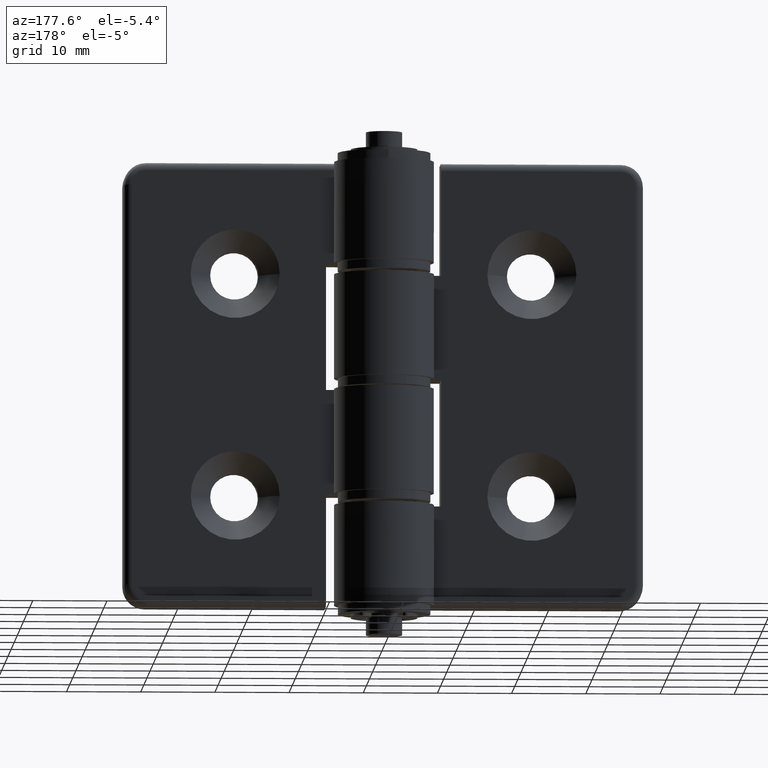
[diagram: clean part render]
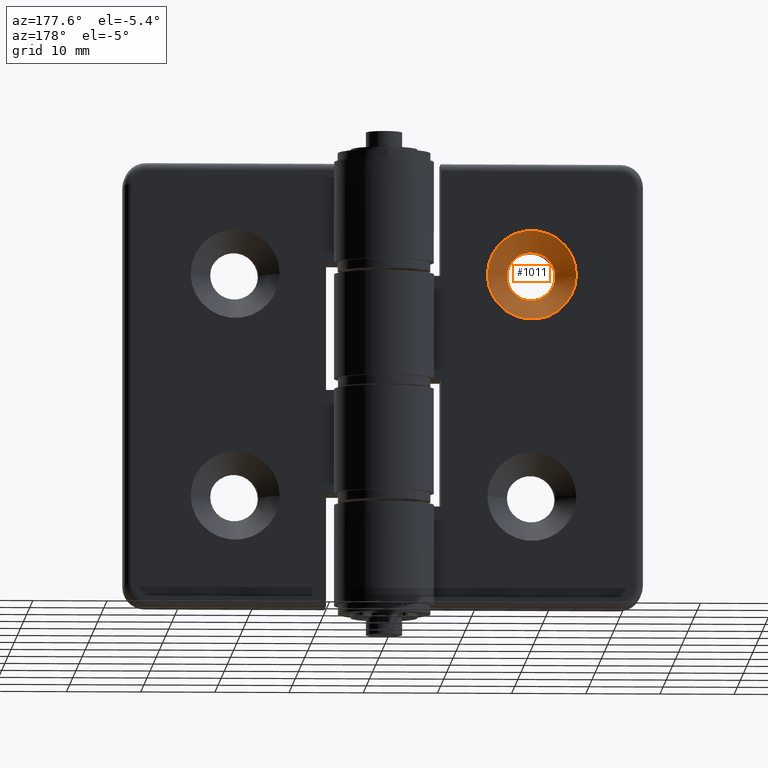
[diagram: same view with one face highlighted and labeled with its STEP entity id]
A machine part, auxiliary view. The second image highlights one B-rep face of the part: STEP entity #1011.
In plain terms, the highlighted conical surface has half-angle 45 deg.
Its self-contained STEP definition (entity closure, byte-faithful):
#72=CONICAL_SURFACE('',#1095,4.625,45.);
#80=FACE_BOUND('',#204,.T.);
#136=FACE_OUTER_BOUND('',#203,.T.);
#203=EDGE_LOOP('',(#775));
#204=EDGE_LOOP('',(#776));
#422=CIRCLE('',#1090,6.);
#425=CIRCLE('',#1096,3.25);
#501=VERTEX_POINT('',#1646);
#504=VERTEX_POINT('',#1655);
#607=EDGE_CURVE('',#501,#501,#422,.T.);
#610=EDGE_CURVE('',#504,#504,#425,.T.);
#775=ORIENTED_EDGE('',*,*,#607,.F.);
#776=ORIENTED_EDGE('',*,*,#610,.F.);
#1011=ADVANCED_FACE('',(#136,#80),#72,.F.);
#1090=AXIS2_PLACEMENT_3D('',#1647,#1285,#1286);
#1095=AXIS2_PLACEMENT_3D('',#1654,#1295,#1296);
#1096=AXIS2_PLACEMENT_3D('',#1656,#1297,#1298);
#1285=DIRECTION('center_axis',(2.22044604925031E-16,-1.,0.));
#1286=DIRECTION('ref_axis',(1.,2.22044604925031E-16,3.12404772976441E-16));
#1295=DIRECTION('center_axis',(-2.22044604925031E-16,1.,0.));
#1296=DIRECTION('ref_axis',(1.,2.22044604925031E-16,3.12404772976441E-16));
#1297=DIRECTION('center_axis',(-2.22044604925031E-16,1.,0.));
#1298=DIRECTION('ref_axis',(1.,2.22044604925031E-16,3.12404772976441E-16));
#1646=CARTESIAN_POINT('',(-14.,5.2,-15.));
#1647=CARTESIAN_POINT('Origin',(-20.,5.2,-15.));
#1654=CARTESIAN_POINT('Origin',(-20.,3.825,-15.));
#1655=CARTESIAN_POINT('',(-16.75,2.45,-15.));
#1656=CARTESIAN_POINT('Origin',(-20.,2.44999999999999,-15.));